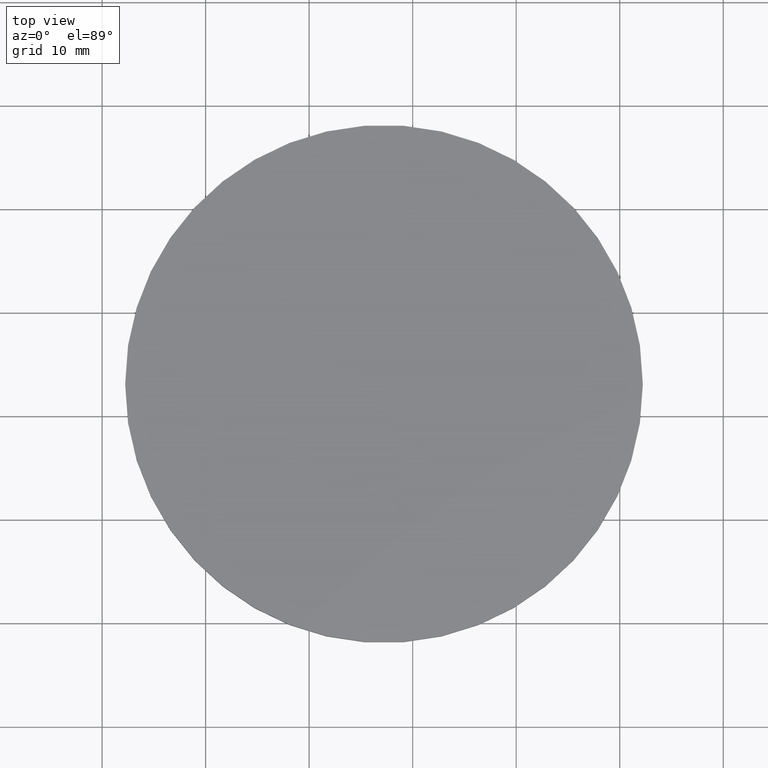
[diagram: clean part render]
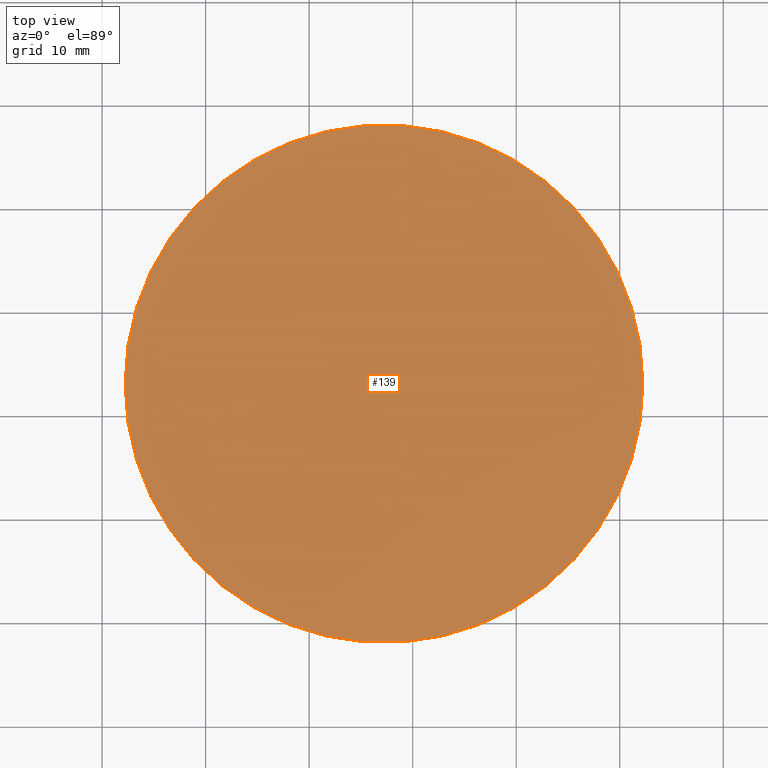
[diagram: same view with one face highlighted and labeled with its STEP entity id]
A machine part, top view. The second image highlights one B-rep face of the part: STEP entity #139.
In plain terms, the highlighted planar face has unit normal (0, 0, 1).
Its self-contained STEP definition (entity closure, byte-faithful):
#2 = ORIENTED_EDGE ( 'NONE', *, *, #131, .T. ) ;
#4 = CARTESIAN_POINT ( 'NONE',  ( 192.2299678845674000, 123.1264836690531900, 2.299999999999999800 ) ) ;
#9 = AXIS2_PLACEMENT_3D ( 'NONE', #36, #18, #44 ) ;
#18 = DIRECTION ( 'NONE',  ( 0.0000000000000000000, 0.0000000000000000000, 1.000000000000000000 ) ) ;
#24 = FACE_OUTER_BOUND ( 'NONE', #63, .T. ) ;
#33 = VERTEX_POINT ( 'NONE', #4 ) ;
#36 = CARTESIAN_POINT ( 'NONE',  ( 217.2299678845674000, 123.1264836690531900, 2.299999999999999800 ) ) ;
#37 = CARTESIAN_POINT ( 'NONE',  ( 217.2299678845674000, 123.1264836690531900, 2.299999999999999800 ) ) ;
#43 = CARTESIAN_POINT ( 'NONE',  ( 242.2299678845673700, 123.1264836690531900, 2.299999999999999800 ) ) ;
#44 = DIRECTION ( 'NONE',  ( 1.000000000000000000, 0.0000000000000000000, -0.0000000000000000000 ) ) ;
#49 = AXIS2_PLACEMENT_3D ( 'NONE', #37, #119, #93 ) ;
#63 = EDGE_LOOP ( 'NONE', ( #95, #2 ) ) ;
#71 = CARTESIAN_POINT ( 'NONE',  ( 217.2299678845674000, 123.1264836690531900, 2.299999999999999800 ) ) ;
#76 = AXIS2_PLACEMENT_3D ( 'NONE', #71, #135, #100 ) ;
#93 = DIRECTION ( 'NONE',  ( 1.000000000000000000, 0.0000000000000000000, 0.0000000000000000000 ) ) ;
#95 = ORIENTED_EDGE ( 'NONE', *, *, #111, .T. ) ;
#100 = DIRECTION ( 'NONE',  ( 1.000000000000000000, 0.0000000000000000000, 0.0000000000000000000 ) ) ;
#104 = CIRCLE ( 'NONE', #49, 24.99999999999999300 ) ;
#111 = EDGE_CURVE ( 'NONE', #33, #134, #127, .T. ) ;
#119 = DIRECTION ( 'NONE',  ( 0.0000000000000000000, 0.0000000000000000000, 1.000000000000000000 ) ) ;
#127 = CIRCLE ( 'NONE', #76, 24.99999999999999300 ) ;
#131 = EDGE_CURVE ( 'NONE', #134, #33, #104, .T. ) ;
#134 = VERTEX_POINT ( 'NONE', #43 ) ;
#135 = DIRECTION ( 'NONE',  ( 0.0000000000000000000, 0.0000000000000000000, 1.000000000000000000 ) ) ;
#138 = PLANE ( 'NONE',  #9 ) ;
#139 = ADVANCED_FACE ( 'NONE', ( #24 ), #138, .T. ) ;